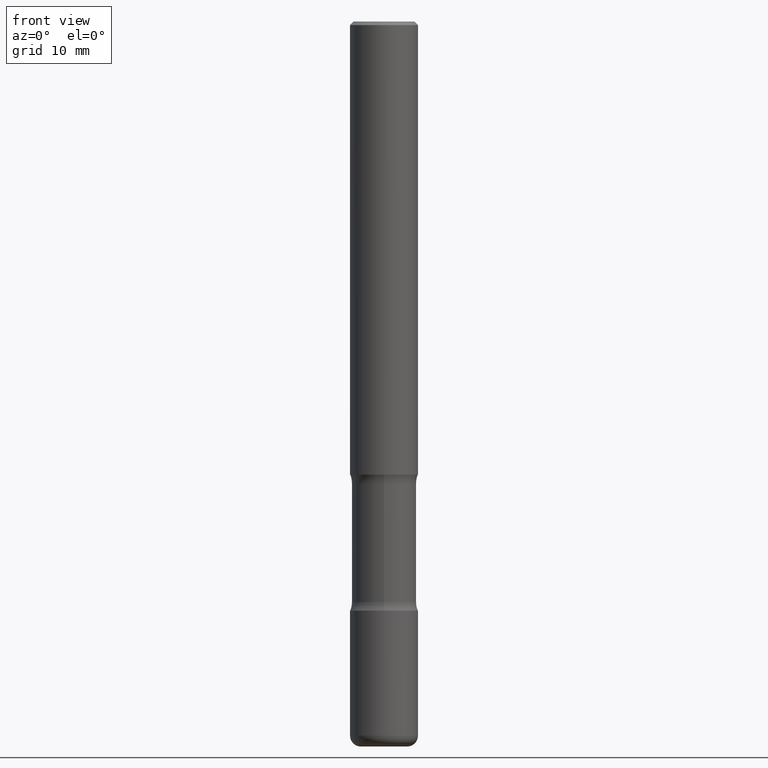
[diagram: clean part render]
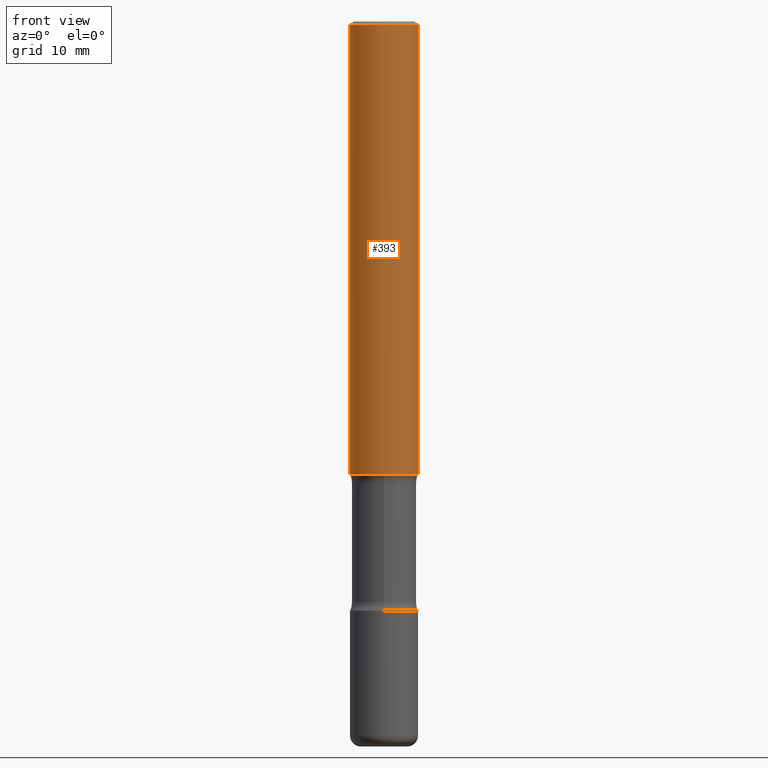
[diagram: same view with one face highlighted and labeled with its STEP entity id]
A machine part, front view. The second image highlights one B-rep face of the part: STEP entity #393.
In plain terms, the highlighted cylindrical surface (edge-blend (fillet) strip) has radius 4.7625 mm, axis along (-0, 0, 1).
Its self-contained STEP definition (entity closure, byte-faithful):
#3 = DIRECTION ( 'NONE',  ( -2.445468806185136597E-29, 3.491481338843145583E-15, 1.000000000000000000 ) ) ;
#4 = VERTEX_POINT ( 'NONE', #449 ) ;
#21 = VERTEX_POINT ( 'NONE', #310 ) ;
#23 = CARTESIAN_POINT ( 'NONE',  ( 6.113672015462842613E-29, -8.728703347107864943E-15, -2.500000000000000000 ) ) ;
#34 = EDGE_CURVE ( 'NONE', #21, #534, #315, .T. ) ;
#48 = ORIENTED_EDGE ( 'NONE', *, *, #34, .F. ) ;
#74 = VECTOR ( 'NONE', #512, 39.37007874015748143 ) ;
#82 = ORIENTED_EDGE ( 'NONE', *, *, #137, .F. ) ;
#88 = FACE_OUTER_BOUND ( 'NONE', #227, .T. ) ;
#98 = LINE ( 'NONE', #182, #224 ) ;
#101 = ORIENTED_EDGE ( 'NONE', *, *, #297, .T. ) ;
#121 = CIRCLE ( 'NONE', #230, 0.1875000000000001110 ) ;
#137 = EDGE_CURVE ( 'NONE', #4, #21, #98, .T. ) ;
#182 = CARTESIAN_POINT ( 'NONE',  ( -0.1875000000000000278, 1.332267629550188046E-15, -9.223003294227947991E-30 ) ) ;
#187 = DIRECTION ( 'NONE',  ( 1.000000000000000000, -6.982962677686265922E-15, 0.000000000000000000 ) ) ;
#206 = CYLINDRICAL_SURFACE ( 'NONE', #209, 0.1875000000000000278 ) ;
#209 = AXIS2_PLACEMENT_3D ( 'NONE', #435, #3, #469 ) ;
#224 = VECTOR ( 'NONE', #531, 39.37007874015748143 ) ;
#227 = EDGE_LOOP ( 'NONE', ( #82, #306, #101, #48 ) ) ;
#230 = AXIS2_PLACEMENT_3D ( 'NONE', #23, #386, #249 ) ;
#249 = DIRECTION ( 'NONE',  ( 1.000000000000000000, -6.982962677686263555E-15, 0.000000000000000000 ) ) ;
#251 = LINE ( 'NONE', #340, #74 ) ;
#278 = CARTESIAN_POINT ( 'NONE',  ( 0.1874999999999999167, -1.356173001359024677E-15, -0.02000000000000006981 ) ) ;
#288 = EDGE_CURVE ( 'NONE', #4, #336, #121, .T. ) ;
#297 = EDGE_CURVE ( 'NONE', #336, #534, #251, .T. ) ;
#306 = ORIENTED_EDGE ( 'NONE', *, *, #288, .T. ) ;
#310 = CARTESIAN_POINT ( 'NONE',  ( -0.1874999999999999167, 1.239475875289311118E-15, -0.02000000000000006981 ) ) ;
#315 = CIRCLE ( 'NONE', #545, 0.1874999999999999167 ) ;
#336 = VERTEX_POINT ( 'NONE', #559 ) ;
#340 = CARTESIAN_POINT ( 'NONE',  ( 0.1875000000000000278, -1.309305502066175008E-15, 9.142831454617381013E-30 ) ) ;
#386 = DIRECTION ( 'NONE',  ( -2.445468806185136597E-29, 3.491481338843145583E-15, 1.000000000000000000 ) ) ;
#393 = ADVANCED_FACE ( 'NONE', ( #88 ), #206, .T. ) ;
#400 = DIRECTION ( 'NONE',  ( -2.445468806185136597E-29, 3.491481338843145583E-15, 1.000000000000000000 ) ) ;
#435 = CARTESIAN_POINT ( 'NONE',  ( 0.000000000000000000, 0.000000000000000000, 0.000000000000000000 ) ) ;
#449 = CARTESIAN_POINT ( 'NONE',  ( -0.1875000000000000833, -3.066998857392172722E-15, -2.500000000000000000 ) ) ;
#469 = DIRECTION ( 'NONE',  ( 1.000000000000000000, -6.982962677686265922E-15, 4.876176775795935793E-29 ) ) ;
#512 = DIRECTION ( 'NONE',  ( -2.445468806185136877E-29, 3.491481338843145188E-15, 1.000000000000000000 ) ) ;
#527 = CARTESIAN_POINT ( 'NONE',  ( 4.890937612370289799E-31, -6.982962677686315028E-17, -0.02000000000000006981 ) ) ;
#531 = DIRECTION ( 'NONE',  ( -2.445468806185136877E-29, 3.491481338843145188E-15, 1.000000000000000000 ) ) ;
#534 = VERTEX_POINT ( 'NONE', #278 ) ;
#545 = AXIS2_PLACEMENT_3D ( 'NONE', #527, #400, #187 ) ;
#559 = CARTESIAN_POINT ( 'NONE',  ( 0.1875000000000001110, -1.003800884917403995E-14, -2.500000000000000000 ) ) ;